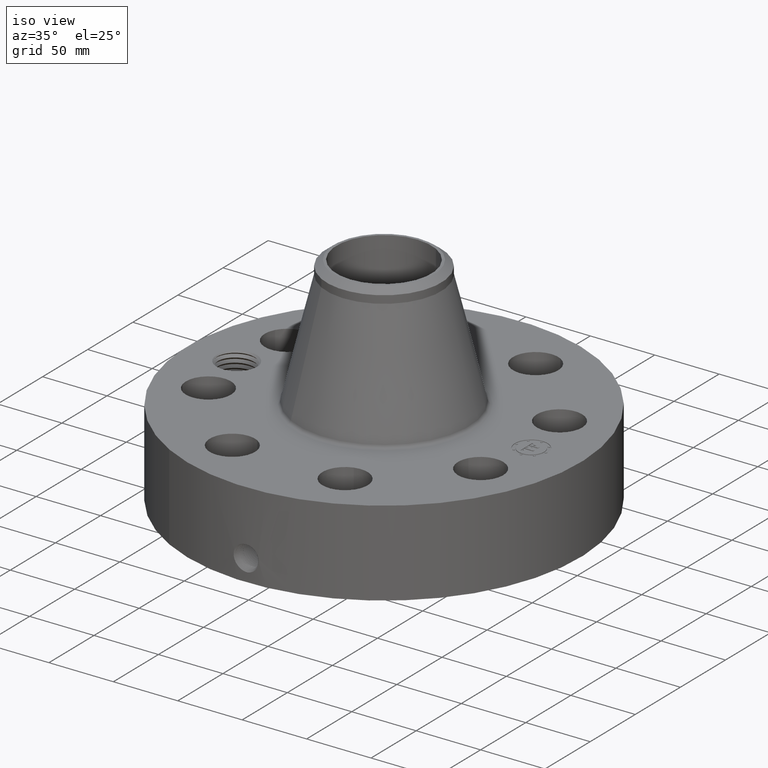
[diagram: clean part render]
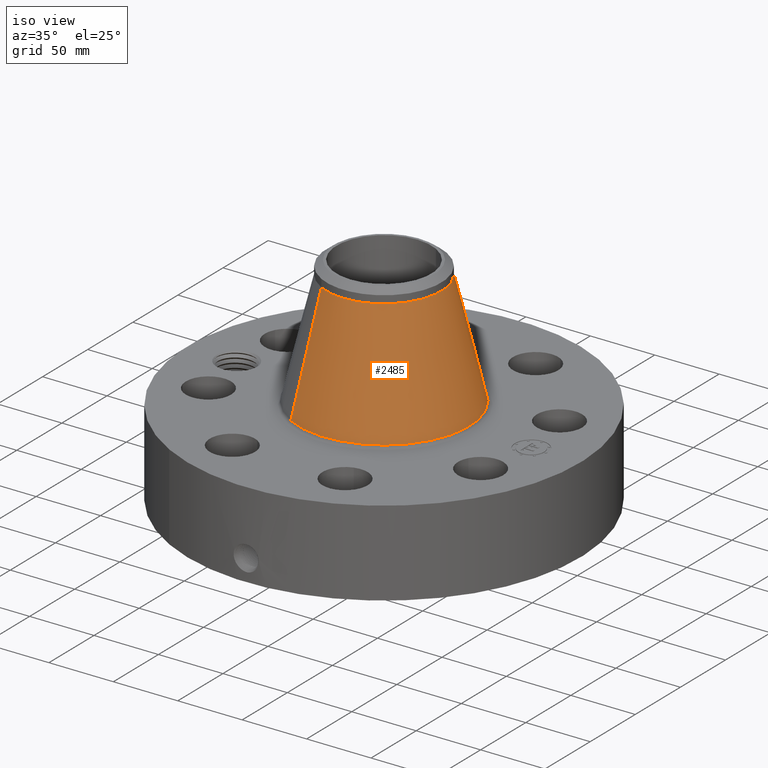
[diagram: same view with one face highlighted and labeled with its STEP entity id]
A machine part, iso view. The second image highlights one B-rep face of the part: STEP entity #2485.
In plain terms, the highlighted conical surface has half-angle 13.683 deg.
Its self-contained STEP definition (entity closure, byte-faithful):
#1801=AXIS2_PLACEMENT_3D('Circle Axis2P3D',#1799,#1800,$) ;
#2458=AXIS2_PLACEMENT_3D('Cone Axis2P3D',#2455,#2456,#2457) ;
#2469=AXIS2_PLACEMENT_3D('Circle Axis2P3D',#2467,#2468,$) ;
#1796=CARTESIAN_POINT('Vertex',(1.24779873299,2.28408025991,2.96161381106)) ;
#1799=CARTESIAN_POINT('Axis2P3D Location',(0.,0.,2.96161381106)) ;
#1803=CARTESIAN_POINT('Vertex',(-1.24779873299,-2.28408025991,2.96161381106)) ;
#2455=CARTESIAN_POINT('Axis2P3D Location',(0.,0.,6.46400087906)) ;
#2460=CARTESIAN_POINT('Line Origine',(1.04339671278,1.90992487161,4.71280734506)) ;
#2464=CARTESIAN_POINT('Vertex',(0.838994692561,1.53576948331,6.46400087906)) ;
#2467=CARTESIAN_POINT('Axis2P3D Location',(0.,0.,6.46400087906)) ;
#2471=CARTESIAN_POINT('Vertex',(-0.838994692561,-1.53576948331,6.46400087906)) ;
#2474=CARTESIAN_POINT('Line Origine',(-1.04339671278,-1.90992487161,4.71280734506)) ;
#1800=DIRECTION('Axis2P3D Direction',(0.,0.,-0.0393700787402)) ;
#2456=DIRECTION('Axis2P3D Direction',(0.,0.,-0.0393700787402)) ;
#2457=DIRECTION('Axis2P3D XDirection',(-0.0188750212049,-0.0345504945626,0.)) ;
#2461=DIRECTION('Vector Direction',(0.00446491598683,0.00817297389236,-0.0382527139298)) ;
#2468=DIRECTION('Axis2P3D Direction',(0.,0.,-0.0393700787402)) ;
#2475=DIRECTION('Vector Direction',(-0.00446491598683,-0.00817297389236,-0.0382527139298)) ;
#2462=VECTOR('Line Direction',#2461,0.0393700787402) ;
#2476=VECTOR('Line Direction',#2475,0.0393700787402) ;
#2480=ORIENTED_EDGE('',*,*,#1805,.F.) ;
#2481=ORIENTED_EDGE('',*,*,#2466,.T.) ;
#2482=ORIENTED_EDGE('',*,*,#2473,.T.) ;
#2483=ORIENTED_EDGE('',*,*,#2478,.F.) ;
#2485=ADVANCED_FACE('PartBody',(#2484),#2459,.T.) ;
#1802=CIRCLE('generated circle',#1801,2.60269558569) ;
#2470=CIRCLE('generated circle',#2469,1.75000000001) ;
#2459=CONICAL_SURFACE('Cone',#2458,1.75000000001,0.238815154699) ;
#1805=EDGE_CURVE('',#1797,#1804,#1802,.T.) ;
#2466=EDGE_CURVE('',#1797,#2465,#2463,.F.) ;
#2473=EDGE_CURVE('',#2465,#2472,#2470,.T.) ;
#2478=EDGE_CURVE('',#1804,#2472,#2477,.F.) ;
#2479=EDGE_LOOP('',(#2480,#2481,#2482,#2483)) ;
#2484=FACE_OUTER_BOUND('',#2479,.T.) ;
#2463=LINE('Line',#2460,#2462) ;
#2477=LINE('Line',#2474,#2476) ;
#1797=VERTEX_POINT('',#1796) ;
#1804=VERTEX_POINT('',#1803) ;
#2465=VERTEX_POINT('',#2464) ;
#2472=VERTEX_POINT('',#2471) ;